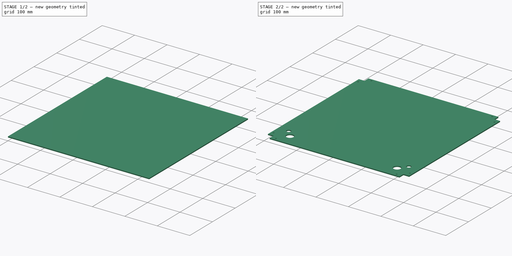
[diagram: build sequence overview — one tinted view per stage of 2, left to right]
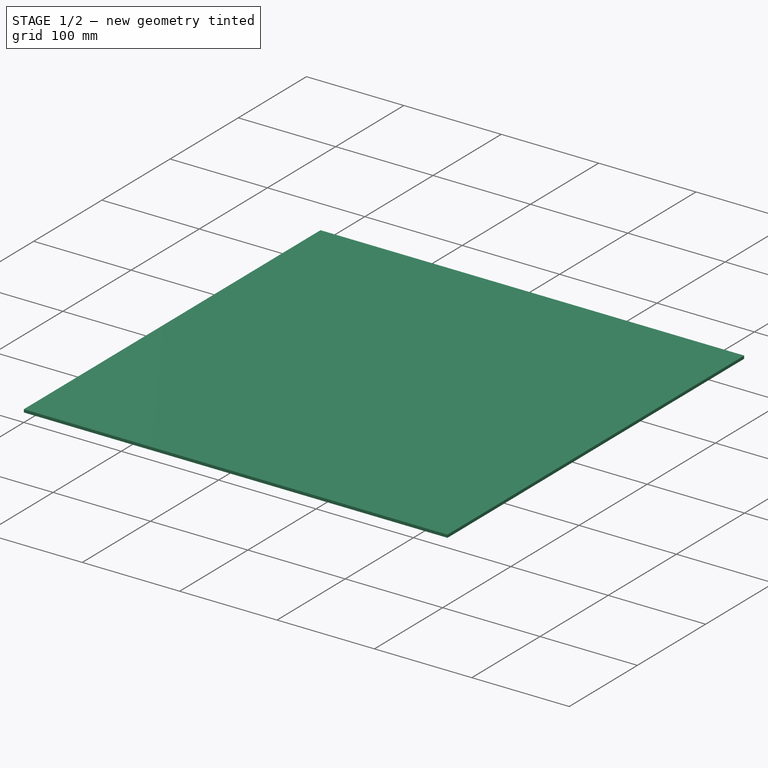
[diagram: stage 1 of 2 — iso view after this stage's code; geometry added in this stage tinted green]
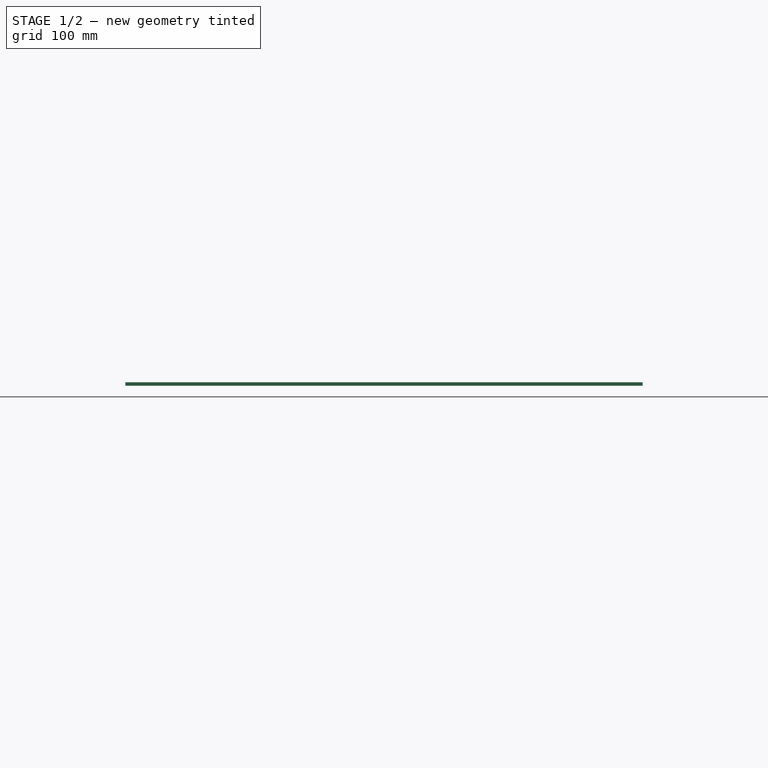
[diagram: stage 1 of 2 — front view after this stage's code; geometry added in this stage tinted green]
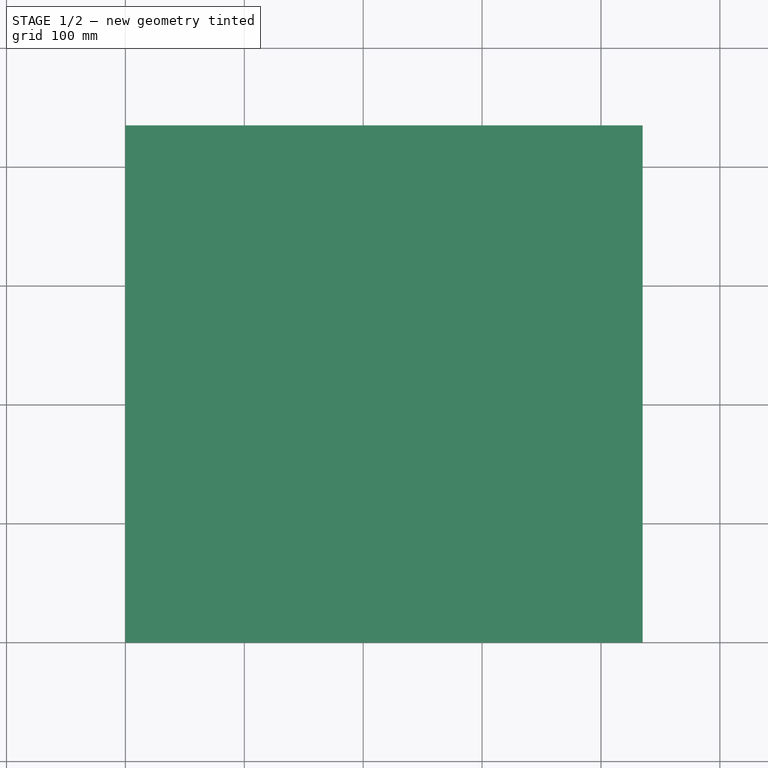
[diagram: stage 1 of 2 — top view after this stage's code; geometry added in this stage tinted green]
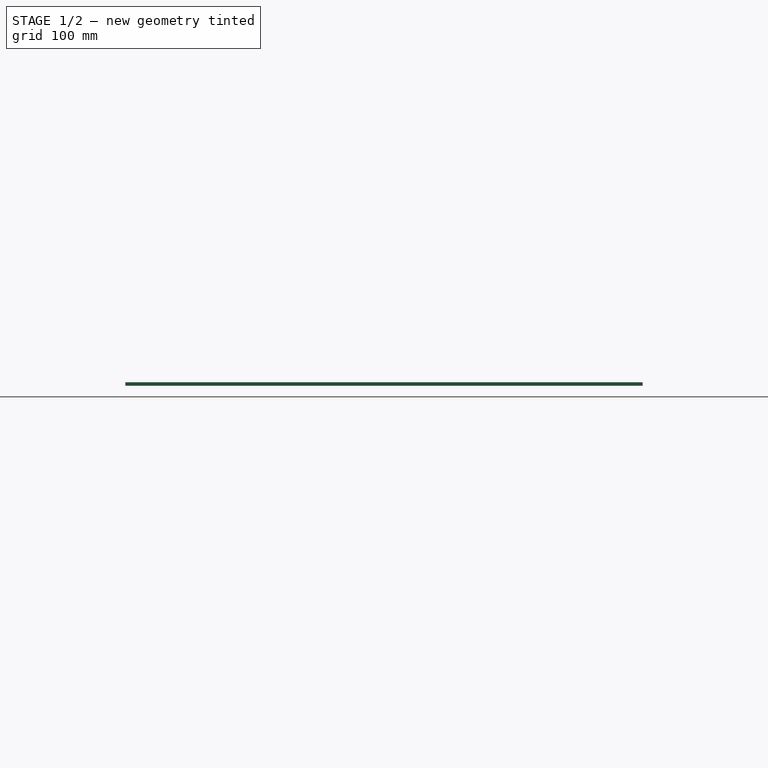
[diagram: stage 1 of 2 — right view after this stage's code; geometry added in this stage tinted green]
FCSTD DOCUMENT  (FreeCAD 0.16R4945 (Git))
Label: Subfloor
License: CreativeCommons Attribution-ShareAlike
LicenseURL: http://creativecommons.org/licenses/by-sa/4.0/
objects: Sketcher::SketchObject×2, PartDesign::Pad×1, PartDesign::Pocket×1
note: 6 computed .brp shape members not serialized (recipe doc carries the construction recipe); baked Part::Feature solids carry a one-line shape summary decoded from their .brp

FEATURE [Sketcher::SketchObject] Sketch002
  sketch-geometry (4):
    g0: LineSegment StartX=0 StartY=0 StartZ=0 EndX=435 EndY=0 EndZ=0
    g1: LineSegment StartX=435 StartY=0 StartZ=0 EndX=435 EndY=435 EndZ=0
    g2: LineSegment StartX=435 StartY=435 StartZ=0 EndX=0 EndY=435 EndZ=0
    g3: LineSegment StartX=0 StartY=435 StartZ=0 EndX=0 EndY=0 EndZ=0
  constraints (11):
    c: Coincident(g0,g1)
    c: Coincident(g1,g2)
    c: Coincident(g2,g3)
    c: Coincident(g3,g0)
    c: Horizontal(g0)
    c: Horizontal(g2)
    c: Vertical(g1)
    c: Vertical(g3)
    c: Coincident(g0,g-1)
    c: Distance(g0) = 435
    c: Distance(g3) = 435
FEATURE [PartDesign::Pad] Pad
  Length = 3
  Length2 = 100
  Sketch = -> Sketch002
  Type = 0
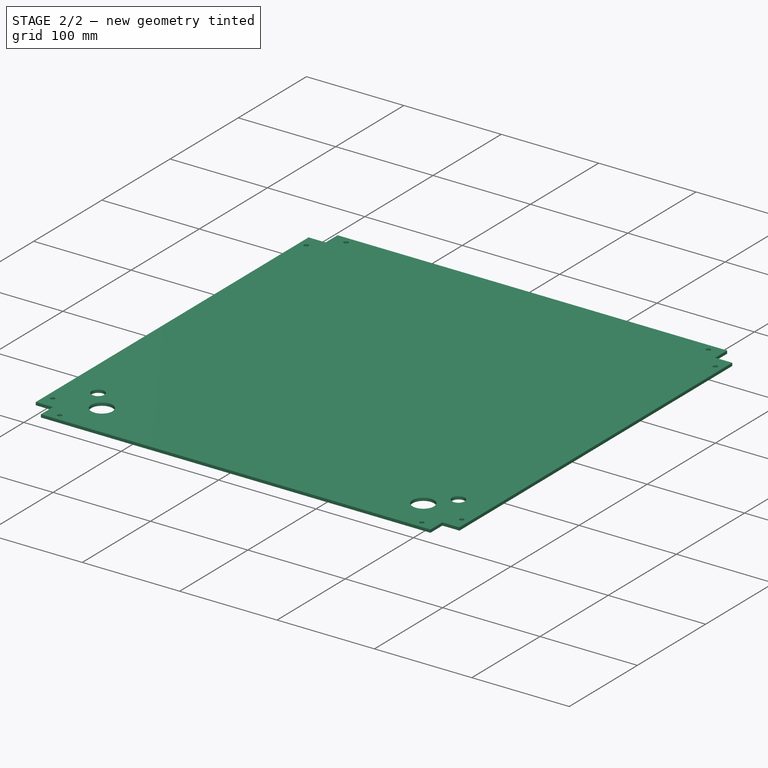
[diagram: stage 2 of 2 — iso view after this stage's code; geometry added in this stage tinted green]
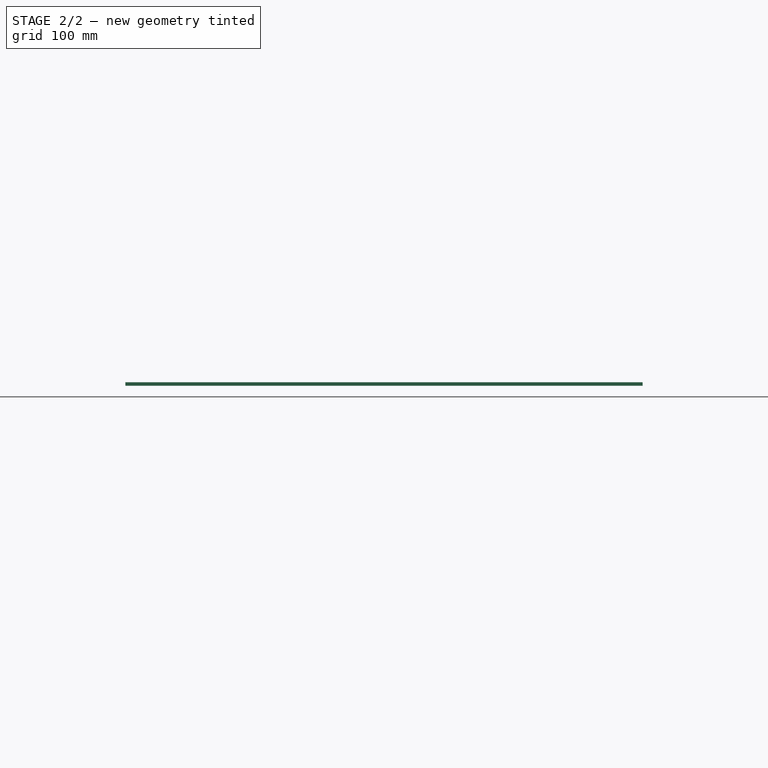
[diagram: stage 2 of 2 — front view after this stage's code; geometry added in this stage tinted green]
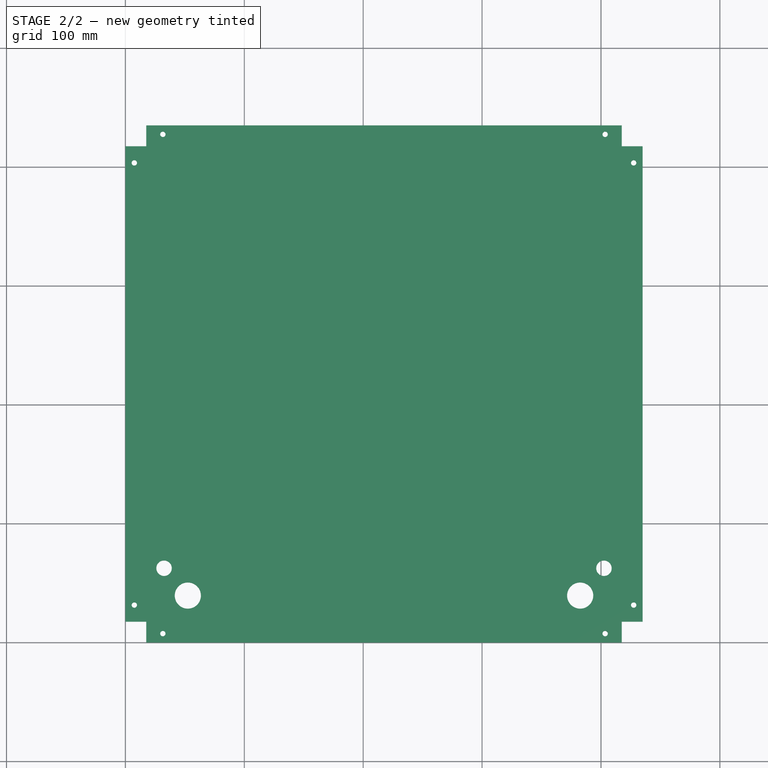
[diagram: stage 2 of 2 — top view after this stage's code; geometry added in this stage tinted green]
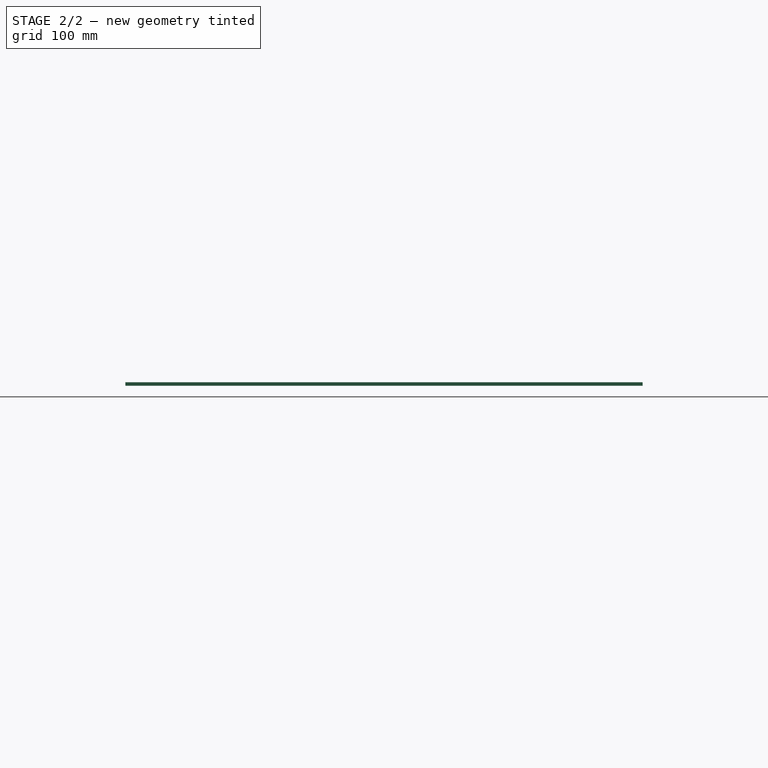
[diagram: stage 2 of 2 — right view after this stage's code; geometry added in this stage tinted green]
FEATURE [Sketcher::SketchObject] Sketch001
  ExternalGeometry = -> [Pad]
  Placement = pos=(0,0,3) rot=(0,0,1;0rad)
  Support = -> Pad [Face6]
  sketch-geometry (30):
    g0: LineSegment StartX=-2.5 StartY=-2.5 StartZ=0 EndX=17.5 EndY=-2.5 EndZ=0
    g1: LineSegment StartX=17.5 StartY=-2.5 StartZ=0 EndX=17.5 EndY=17.5 EndZ=0
    g2: LineSegment StartX=17.5 StartY=17.5 StartZ=0 EndX=-2.5 EndY=17.5 EndZ=0
    g3: LineSegment StartX=-2.5 StartY=17.5 StartZ=0 EndX=-2.5 EndY=-2.5 EndZ=0
    g4: LineSegment StartX=417.5 StartY=17.5 StartZ=0 EndX=437.5 EndY=17.5 EndZ=0
    g5: LineSegment StartX=437.5 StartY=17.5 StartZ=0 EndX=437.5 EndY=-2.5 EndZ=0
    g6: LineSegment StartX=437.5 StartY=-2.5 StartZ=0 EndX=417.5 EndY=-2.5 EndZ=0
    g7: LineSegment StartX=417.5 StartY=-2.5 StartZ=0 EndX=417.5 EndY=17.5 EndZ=0
    g8: LineSegment StartX=-2.5 StartY=437.5 StartZ=0 EndX=17.5 EndY=437.5 EndZ=0
    g9: LineSegment StartX=17.5 StartY=437.5 StartZ=0 EndX=17.5 EndY=417.5 EndZ=0
    g10: LineSegment StartX=17.5 StartY=417.5 StartZ=0 EndX=-2.5 EndY=417.5 EndZ=0
    g11: LineSegment StartX=-2.5 StartY=417.5 StartZ=0 EndX=-2.5 EndY=437.5 EndZ=0
    g12: LineSegment StartX=437.5 StartY=437.5 StartZ=0 EndX=417.5 EndY=437.5 EndZ=0
    g13: LineSegment StartX=417.5 StartY=437.5 StartZ=0 EndX=417.5 EndY=417.5 EndZ=0
    g14: LineSegment StartX=417.5 StartY=417.5 StartZ=0 EndX=437.5 EndY=417.5 EndZ=0
    g15: LineSegment StartX=437.5 StartY=417.5 StartZ=0 EndX=437.5 EndY=437.5 EndZ=0
    g16: LineSegment [constr] StartX=0 StartY=217.5 StartZ=0 EndX=435 EndY=217.5 EndZ=0
    g17: LineSegment [constr] StartX=217.5 StartY=435 StartZ=0 EndX=217.5 EndY=0 EndZ=0
    g18: Circle CenterX=7.5 CenterY=31.5 CenterZ=0 NormalX=0 NormalY=0 NormalZ=1 Radius=2.25
    g19: Circle CenterX=31.5 CenterY=7.5 CenterZ=0 NormalX=0 NormalY=0 NormalZ=1 Radius=2.25
    g20: Circle CenterX=7.5 CenterY=403.5 CenterZ=0 NormalX=0 NormalY=0 NormalZ=1 Radius=2.25
    g21: Circle CenterX=31.5 CenterY=427.5 CenterZ=0 NormalX=0 NormalY=0 NormalZ=1 Radius=2.25
    g22: Circle CenterX=403.5 CenterY=427.5 CenterZ=0 NormalX=0 NormalY=0 NormalZ=1 Radius=2.25
    g23: Circle CenterX=427.5 CenterY=403.5 CenterZ=0 NormalX=0 NormalY=0 NormalZ=1 Radius=2.25
    g24: Circle CenterX=403.5 CenterY=7.5 CenterZ=0 NormalX=0 NormalY=0 NormalZ=1 Radius=2.25
    g25: Circle CenterX=427.5 CenterY=31.5 CenterZ=0 NormalX=0 NormalY=0 NormalZ=1 Radius=2.25
    g26: Circle CenterX=32.5 CenterY=62.5 CenterZ=0 NormalX=0 NormalY=0 NormalZ=1 Radius=6.5
    g27: Circle CenterX=52.5 CenterY=39.5 CenterZ=0 NormalX=0 NormalY=0 NormalZ=1 Radius=11
    g28: Circle CenterX=402.5 CenterY=62.5 CenterZ=0 NormalX=0 NormalY=0 NormalZ=1 Radius=6.5
    g29: Circle CenterX=382.5 CenterY=39.5 CenterZ=0 NormalX=0 NormalY=0 NormalZ=1 Radius=11
  constraints (81):
    c: Coincident(g0,g1)
    c: Coincident(g1,g2)
    c: Coincident(g2,g3)
    c: Coincident(g3,g0)
    c: Horizontal(g0)
    c: Horizontal(g2)
    c: Vertical(g1)
    c: Vertical(g3)
    c: Distance(g2) = 20
    c: Distance(g3) = 20
    c: Coincident(g4,g5)
    c: Coincident(g5,g6)
    c: Coincident(g6,g7)
    c: Coincident(g7,g4)
    c: Horizontal(g4)
    c: Horizontal(g6)
    c: Vertical(g5)
    c: Vertical(g7)
    c: Distance(g7) = 20
    c: Distance(g4) = 20
    c: Coincident(g8,g9)
    c: Coincident(g9,g10)
    c: Coincident(g10,g11)
    c: Coincident(g11,g8)
    c: Horizontal(g8)
    c: Horizontal(g10)
    c: Vertical(g9)
    c: Vertical(g11)
    c: Distance(g10) = 20
    c: Distance(g9) = 20
    c: Coincident(g12,g13)
    c: Coincident(g13,g14)
    c: Coincident(g14,g15)
    c: Coincident(g15,g12)
    c: Horizontal(g12)
    c: Horizontal(g14)
    c: Vertical(g13)
    c: Vertical(g15)
    c: Distance(g13) = 20
    c: Distance(g14) = 20
    c: PointOnObject(g16,g-3)
    c: PointOnObject(g16,g-5)
    c: Horizontal(g16)
    c: PointOnObject(g17,g-6)
    c: PointOnObject(g17,g-4)
    c: Vertical(g17)
    c: Symmetric(g-1,g-5,g17)
    c: Symmetric(g-1,g-6,g16)
    c: Symmetric(g0,g6,g17)
    c: Symmetric(g2,g10,g16)
    c: Symmetric(g8,g12,g17)
    c: DistanceX(g0,g6) = 400
    c: DistanceY(g2,g10) = 400
    c: DistanceX(g-1,g18) = 7.5
    c: DistanceY(g1,g18) = 14
    c: DistanceX(g1,g19) = 14
    c: Symmetric(g20,g18,g16)
    c: Symmetric(g19,g21,g16)
    c: Symmetric(g23,g25,g16)
    c: Symmetric(g22,g24,g16)
    c: Symmetric(g19,g24,g17)
    c: Symmetric(g18,g25,g17)
    c: Radius(g18) = 2.25
    c: Equal(g18,g19)
    c: Equal(g19,g20)
    c: Equal(g20,g21)
    c: Equal(g21,g22)
    c: Equal(g22,g23)
    c: Equal(g23,g25)
    c: Equal(g25,g24)
    c: Radius(g26) = 6.5
    c: Radius(g27) = 11
    c: DistanceY(g-1,g27) = 39.5
    c: DistanceY(g-1,g26) = 62.5
    c: DistanceX(g-1,g26) = 32.5
    c: DistanceX(g-1,g27) = 52.5
    c: Symmetric(g28,g26,g17)
    c: Symmetric(g29,g27,g17)
    c: Equal(g26,g28)
    c: Equal(g27,g29)
    c: DistanceY(g-1,g19) = 7.5
FEATURE [PartDesign::Pocket] Pocket
  Length = 5
  Sketch = -> Sketch001
  Type = 0
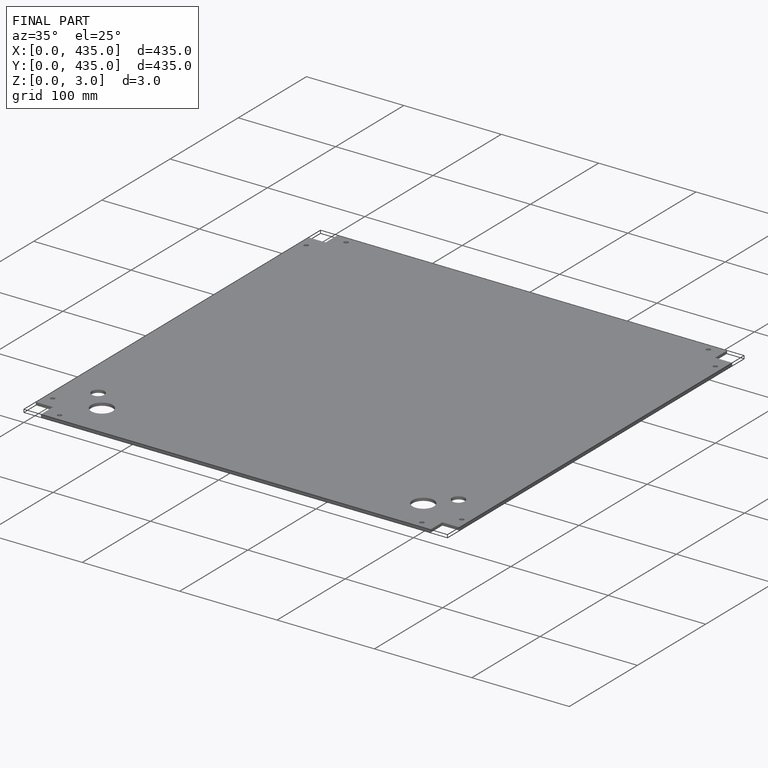
[diagram: finished part — iso view with bounding-box wireframe]
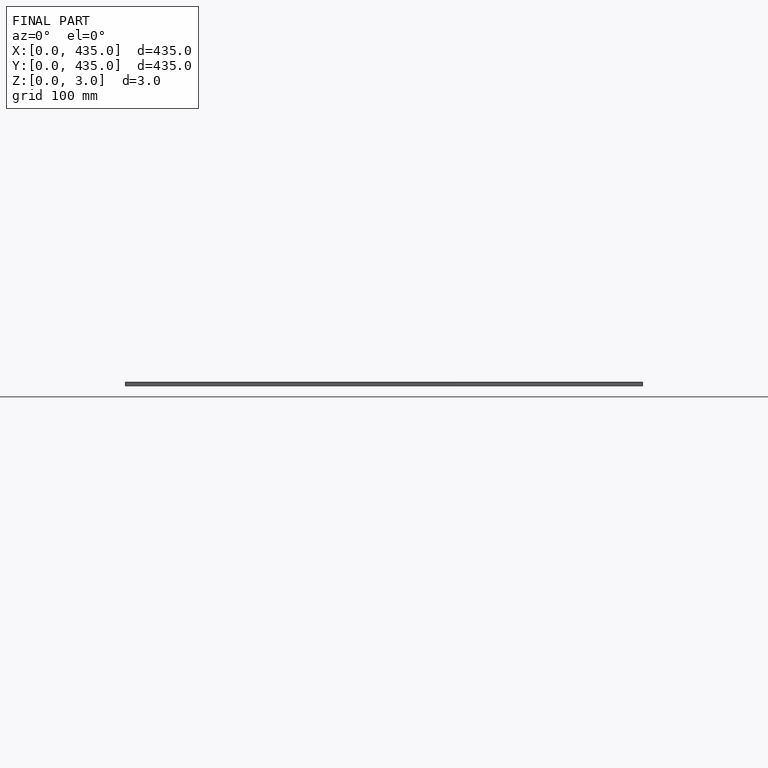
[diagram: finished part — front view with bounding-box wireframe]
